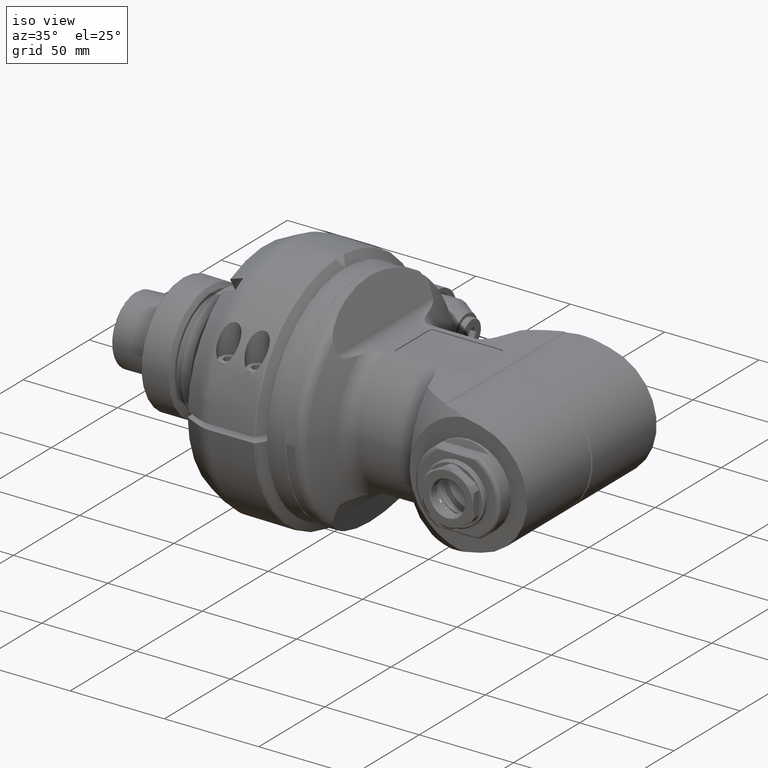
[diagram: clean part render]
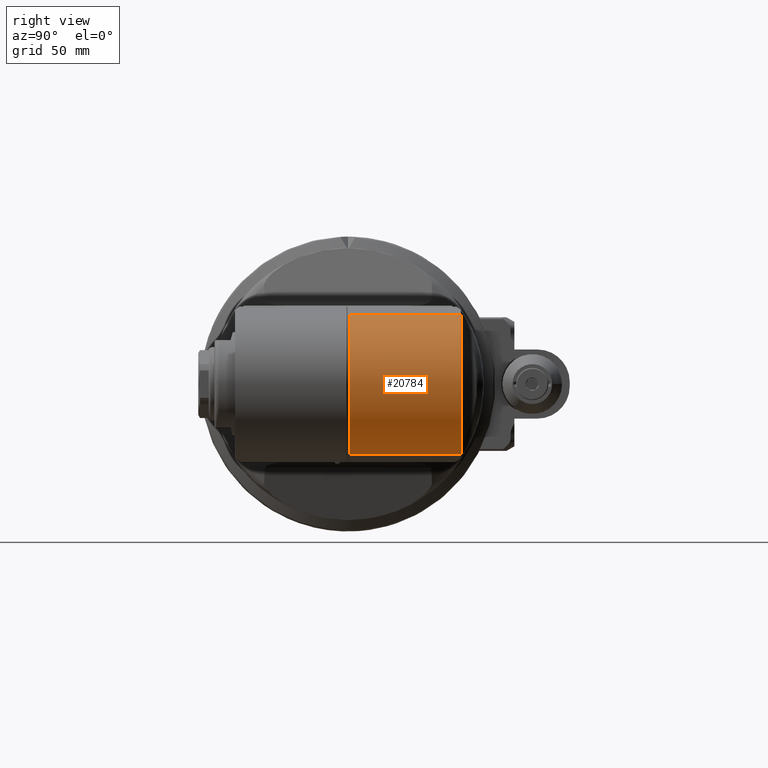
[diagram: tour spotlight — one face highlighted and labeled with its STEP entity id]
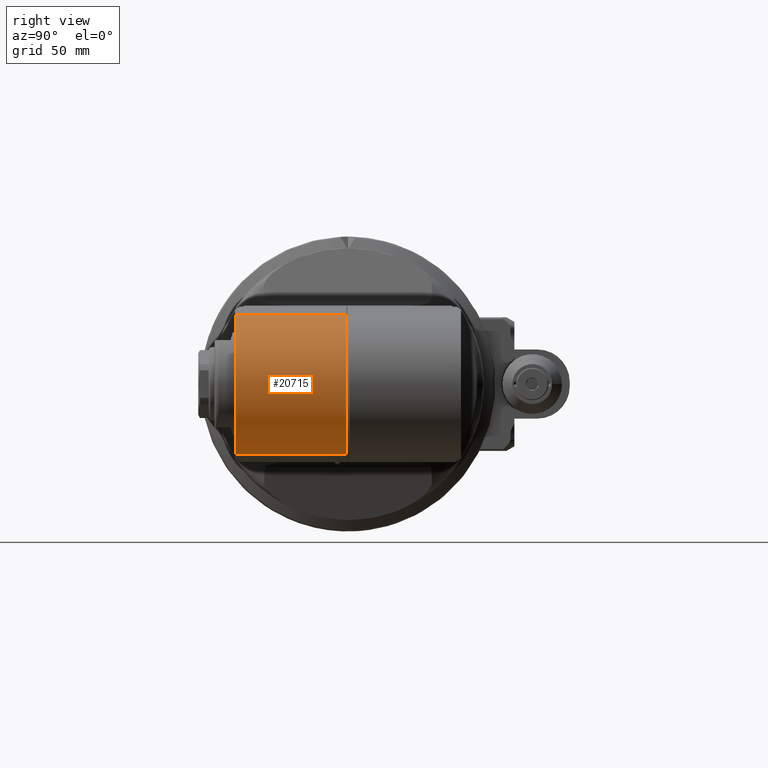
[diagram: tour spotlight — one face highlighted and labeled with its STEP entity id]
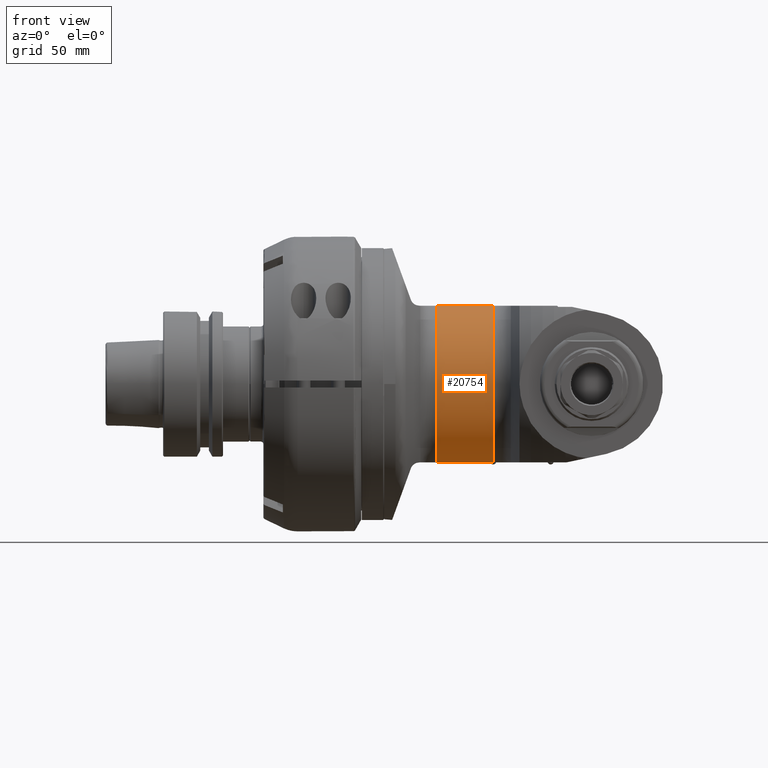
[diagram: tour spotlight — one face highlighted and labeled with its STEP entity id]
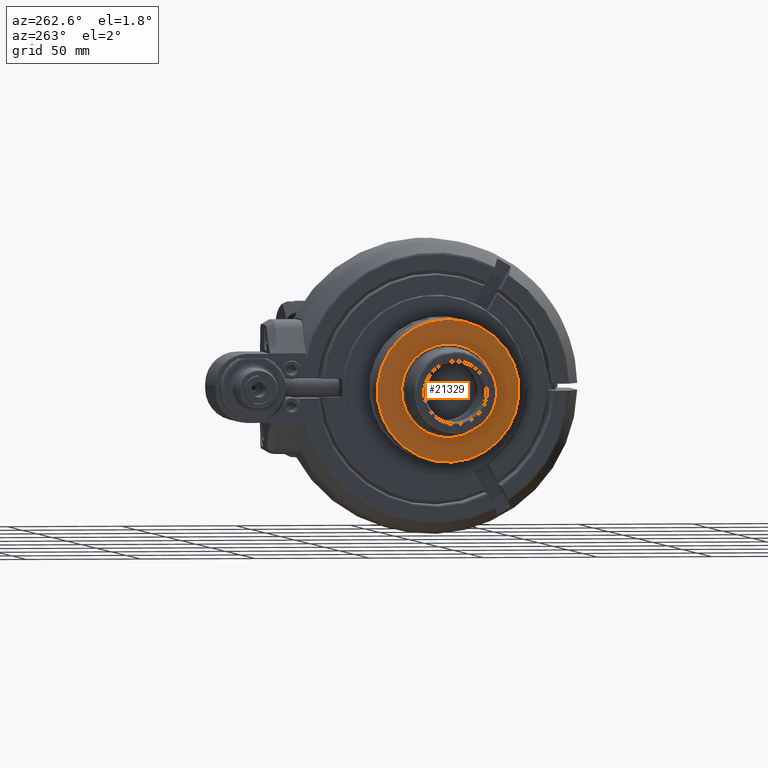
[diagram: tour spotlight — one face highlighted and labeled with its STEP entity id]
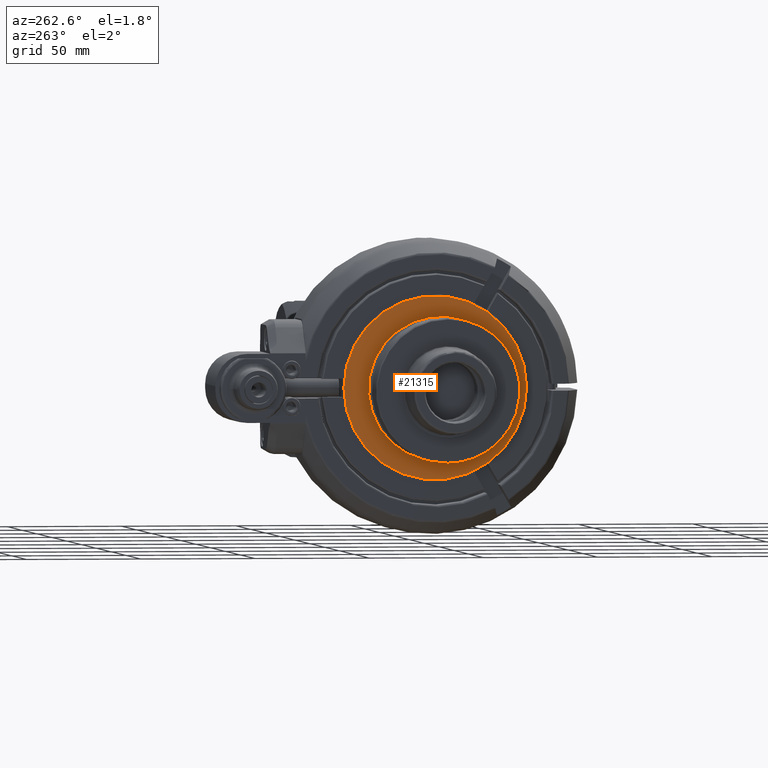
[diagram: tour spotlight — one face highlighted and labeled with its STEP entity id]
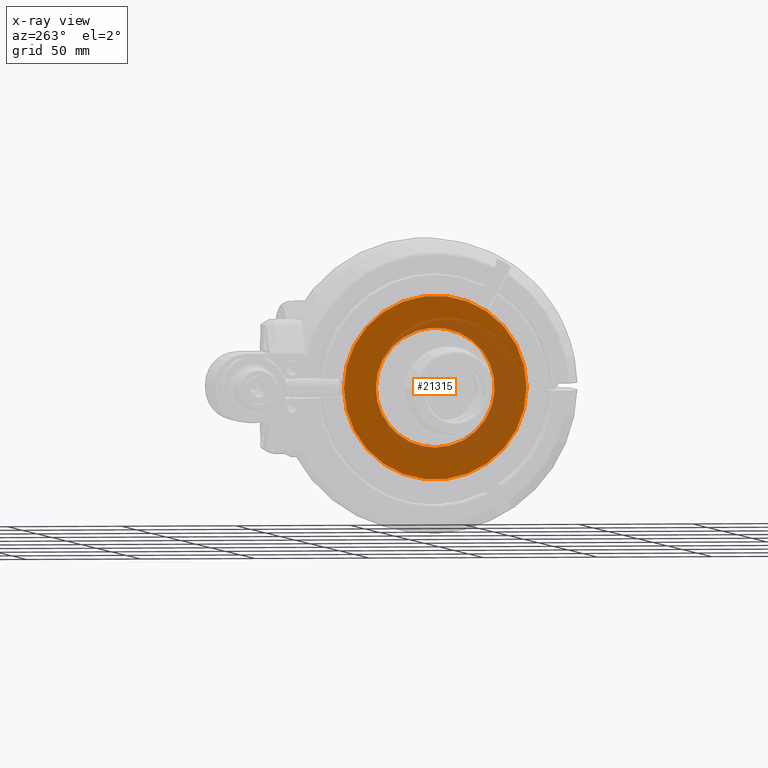
[diagram: x-ray of the same camera — body ghosted, this tour face saturated]
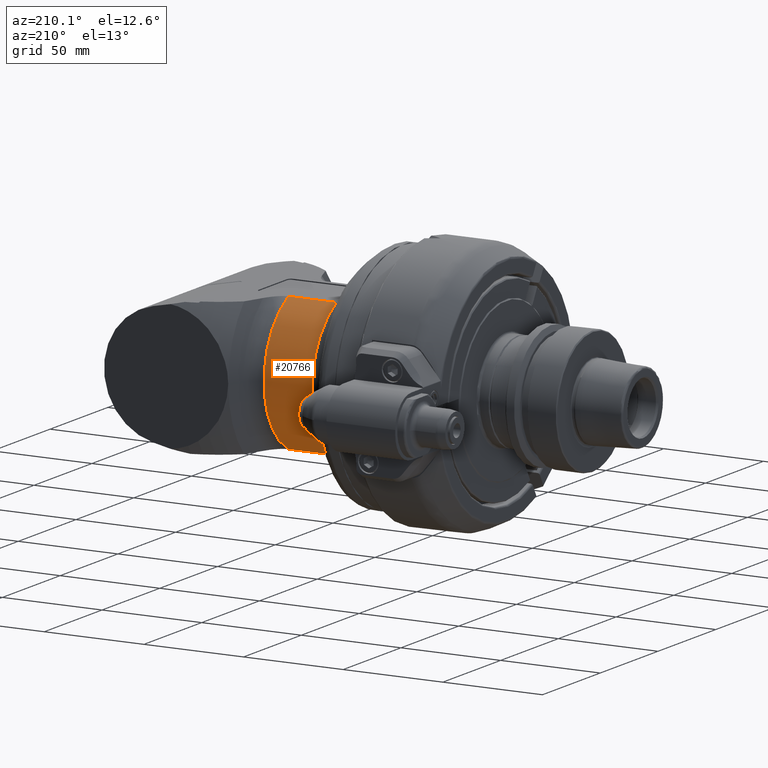
[diagram: tour spotlight — one face highlighted and labeled with its STEP entity id]
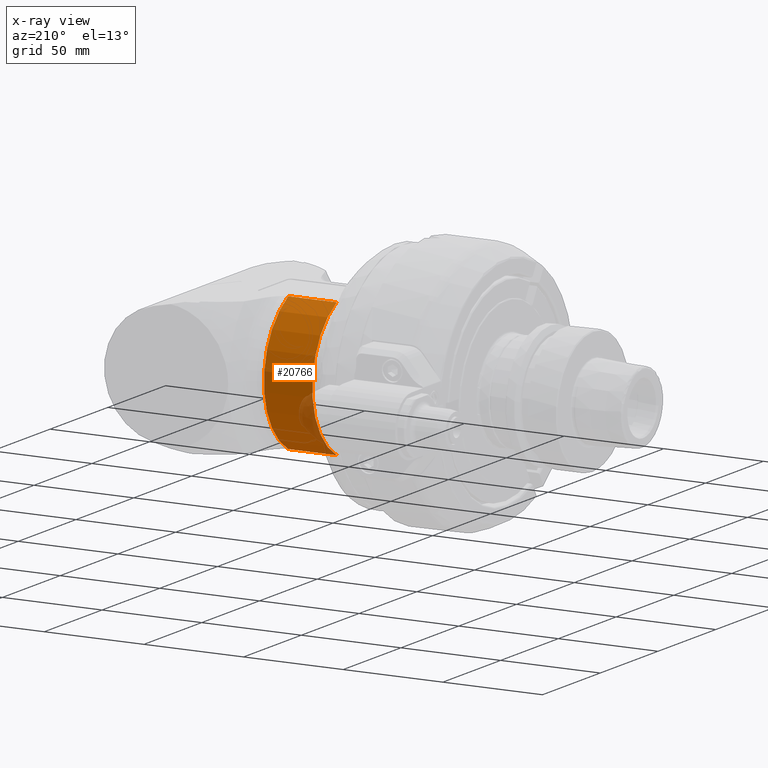
[diagram: x-ray of the same camera — body ghosted, this tour face saturated]
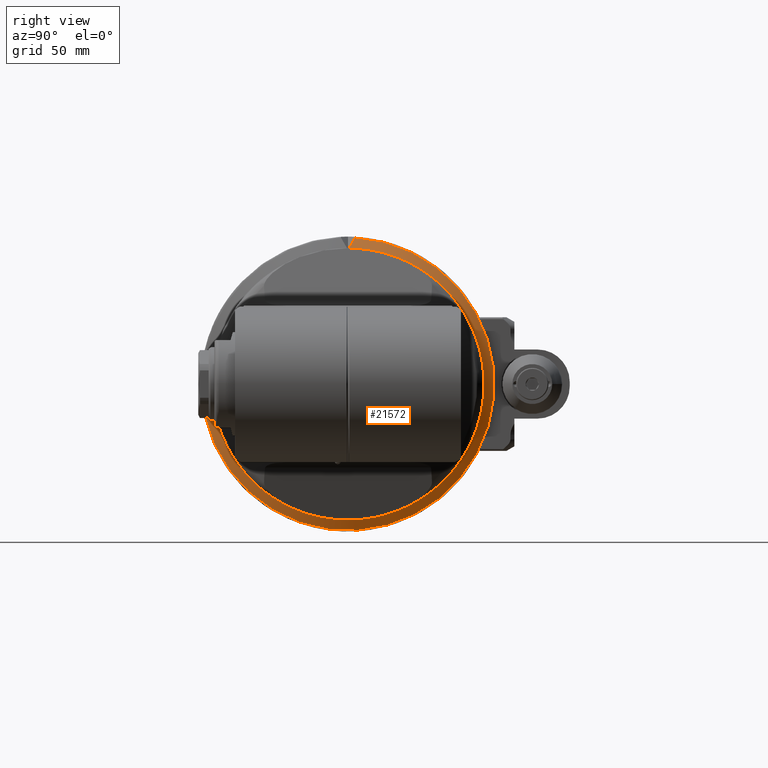
[diagram: tour spotlight — one face highlighted and labeled with its STEP entity id]
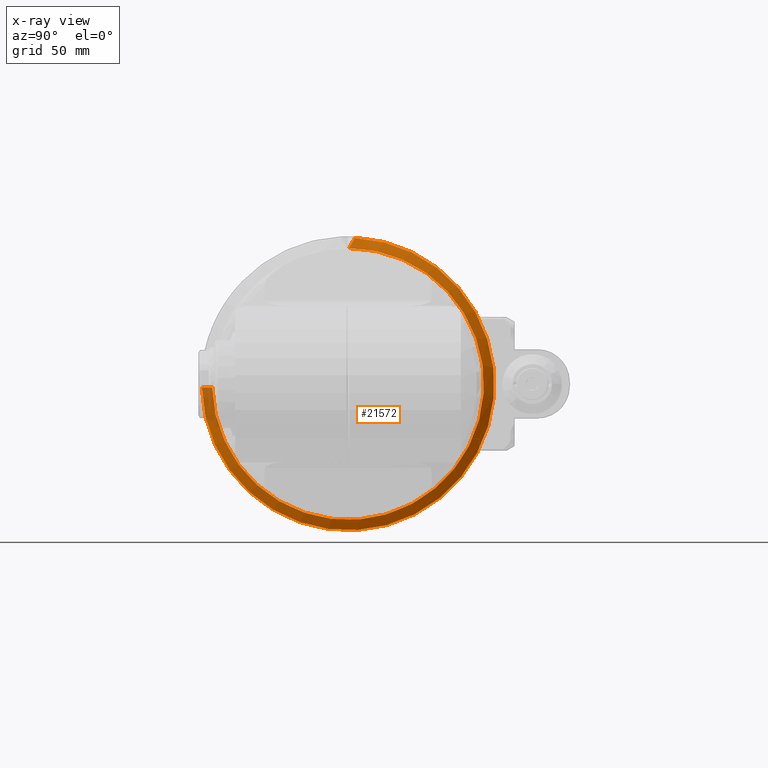
[diagram: x-ray of the same camera — body ghosted, this tour face saturated]
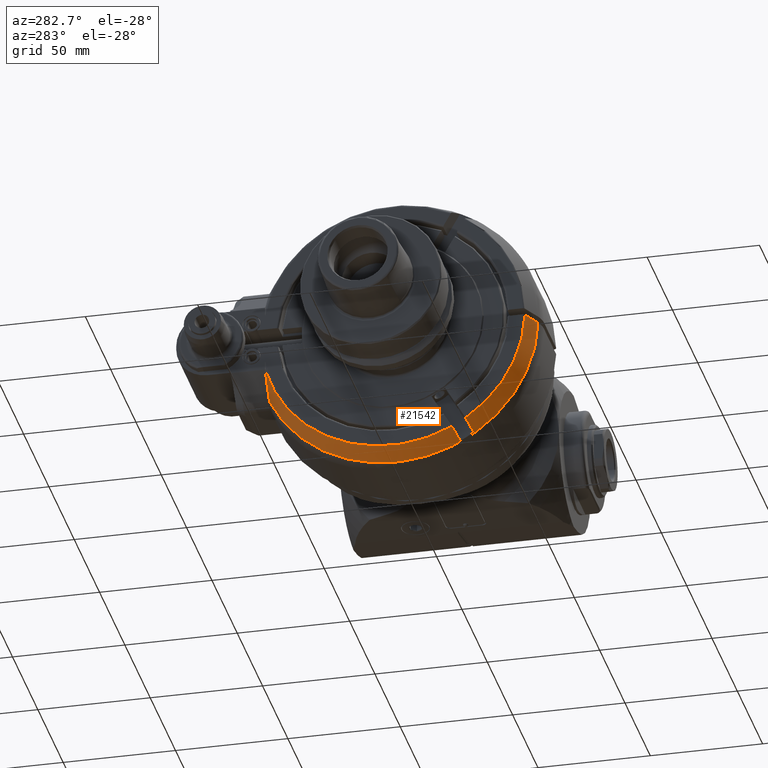
[diagram: tour spotlight — one face highlighted and labeled with its STEP entity id]
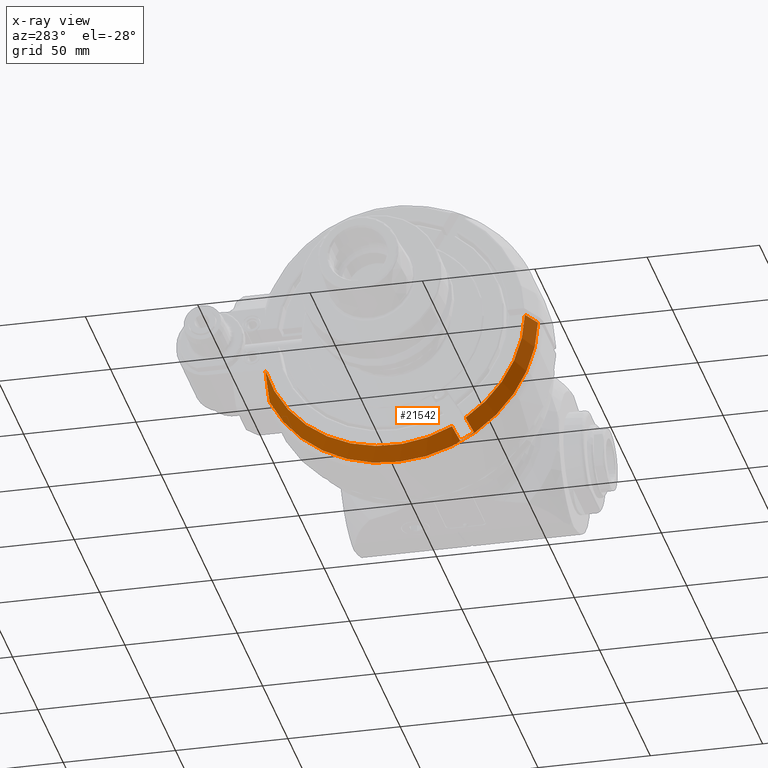
[diagram: x-ray of the same camera — body ghosted, this tour face saturated]
A machine part: a face-by-face anatomy tour. The part has 908 B-rep faces; the first image is the clean iso view, then the 8 largest visible faces are spotlighted one at a time (largest first), each with its STEP entity span.

Face 1 — right view, entity #20784. In plain terms, the highlighted cylindrical surface (partial cylindrical patch) has radius 31 mm, axis along (0, 1, 0).
Definition (entity closure, byte-faithful):
#650=CIRCLE('',#21977,31.);
#699=CIRCLE('',#22081,31.);
#2291=CYLINDRICAL_SURFACE('',#22080,31.);
#2480=FACE_OUTER_BOUND('',#3394,.T.);
#3394=EDGE_LOOP('',(#14046,#14047,#14048,#14049));
#4537=LINE('',#35312,#6032);
#4543=LINE('',#35451,#6038);
#6032=VECTOR('',#25114,1.);
#6038=VECTOR('',#25134,1.);
#7392=VERTEX_POINT('',#32868);
#7398=VERTEX_POINT('',#33017);
#7643=VERTEX_POINT('',#35310);
#7649=VERTEX_POINT('',#35449);
#10013=EDGE_CURVE('',#7398,#7392,#650,.T.);
#10300=EDGE_CURVE('',#7643,#7398,#4537,.T.);
#10310=EDGE_CURVE('',#7643,#7649,#699,.T.);
#10311=EDGE_CURVE('',#7392,#7649,#4543,.T.);
#14046=ORIENTED_EDGE('',*,*,#10310,.T.);
#14047=ORIENTED_EDGE('',*,*,#10311,.F.);
#14048=ORIENTED_EDGE('',*,*,#10013,.F.);
#14049=ORIENTED_EDGE('',*,*,#10300,.F.);
#20784=ADVANCED_FACE('',(#2480),#2291,.T.);
#21977=AXIS2_PLACEMENT_3D('',#33019,#24725,#24726);
#22080=AXIS2_PLACEMENT_3D('',#35448,#25130,#25131);
#22081=AXIS2_PLACEMENT_3D('',#35450,#25132,#25133);
#24725=DIRECTION('center_axis',(0.,1.,0.));
#24726=DIRECTION('ref_axis',(1.,0.,0.));
#25114=DIRECTION('',(-3.63387320228983E-17,1.,-1.70960292815196E-16));
#25130=DIRECTION('center_axis',(0.,1.,0.));
#25131=DIRECTION('ref_axis',(1.,0.,0.));
#25132=DIRECTION('center_axis',(0.,1.,0.));
#25133=DIRECTION('ref_axis',(1.,0.,0.));
#25134=DIRECTION('',(3.63387320228983E-17,-1.,-1.70960292815196E-16));
#32868=CARTESIAN_POINT('',(284.508359415351,49.0000000000001,-30.322575622748));
#33017=CARTESIAN_POINT('',(284.508359415351,49.0000000000001,30.322575622748));
#33019=CARTESIAN_POINT('Origin',(278.063097,49.0000000000001,-9.21763359581189E-15));
#35310=CARTESIAN_POINT('',(284.508359415351,0.665685424949276,30.322575622748));
#35312=CARTESIAN_POINT('',(284.508359415351,49.,30.322575622748));
#35448=CARTESIAN_POINT('Origin',(278.063097,49.,-9.21763359581189E-15));
#35449=CARTESIAN_POINT('',(284.50835941535,0.665685424949262,-30.322575622748));
#35450=CARTESIAN_POINT('Origin',(278.063097,0.665685424949315,-9.2176335958119E-15));
#35451=CARTESIAN_POINT('',(284.508359415351,49.,-30.322575622748));

Face 2 — right view, entity #20715. In plain terms, the highlighted cylindrical surface (partial cylindrical patch) has radius 31 mm, axis along (0, 1, 0).
Definition (entity closure, byte-faithful):
#615=CIRCLE('',#21912,31.);
#616=CIRCLE('',#21913,31.);
#2284=CYLINDRICAL_SURFACE('',#21911,31.);
#2411=FACE_OUTER_BOUND('',#3307,.T.);
#3307=EDGE_LOOP('',(#13295,#13296,#13297,#13298));
#4287=LINE('',#31269,#5782);
#4288=LINE('',#31273,#5783);
#5782=VECTOR('',#24538,1.);
#5783=VECTOR('',#24541,1.);
#7277=VERTEX_POINT('',#31267);
#7278=VERTEX_POINT('',#31268);
#7279=VERTEX_POINT('',#31270);
#7280=VERTEX_POINT('',#31272);
#9879=EDGE_CURVE('',#7277,#7278,#4287,.T.);
#9880=EDGE_CURVE('',#7279,#7277,#615,.T.);
#9881=EDGE_CURVE('',#7280,#7279,#4288,.T.);
#9882=EDGE_CURVE('',#7280,#7278,#616,.T.);
#13295=ORIENTED_EDGE('',*,*,#9879,.F.);
#13296=ORIENTED_EDGE('',*,*,#9880,.F.);
#13297=ORIENTED_EDGE('',*,*,#9881,.F.);
#13298=ORIENTED_EDGE('',*,*,#9882,.T.);
#20715=ADVANCED_FACE('',(#2411),#2284,.T.);
#21911=AXIS2_PLACEMENT_3D('',#31266,#24536,#24537);
#21912=AXIS2_PLACEMENT_3D('',#31271,#24539,#24540);
#21913=AXIS2_PLACEMENT_3D('',#31274,#24542,#24543);
#24536=DIRECTION('center_axis',(0.,1.,0.));
#24537=DIRECTION('ref_axis',(1.,0.,0.));
#24538=DIRECTION('',(3.63387320228983E-17,-1.,-1.70960292815196E-16));
#24539=DIRECTION('center_axis',(0.,1.,0.));
#24540=DIRECTION('ref_axis',(1.,0.,0.));
#24541=DIRECTION('',(-3.63387320228983E-17,1.,-1.70960292815196E-16));
#24542=DIRECTION('center_axis',(0.,1.,0.));
#24543=DIRECTION('ref_axis',(1.,0.,0.));
#31266=CARTESIAN_POINT('Origin',(278.063097,49.,-9.21763359581189E-15));
#31267=CARTESIAN_POINT('',(284.50835941535,-0.665685424949142,-30.322575622748));
#31268=CARTESIAN_POINT('',(284.508359415351,-49.,-30.322575622748));
#31269=CARTESIAN_POINT('',(284.508359415351,49.,-30.322575622748));
#31270=CARTESIAN_POINT('',(284.508359415351,-0.665685424949146,30.322575622748));
#31271=CARTESIAN_POINT('Origin',(278.063097,-0.665685424949188,-9.2176335958119E-15));
#31272=CARTESIAN_POINT('',(284.508359415351,-49.,30.322575622748));
#31273=CARTESIAN_POINT('',(284.508359415351,49.,30.322575622748));
#31274=CARTESIAN_POINT('Origin',(278.063097,-49.,-9.21763359581189E-15));

Face 3 — front view, entity #20754. In plain terms, the highlighted cylindrical surface (partial cylindrical patch) has radius 38 mm, axis along (1, 0, 0).
Definition (entity closure, byte-faithful):
#670=CIRCLE('',#22017,38.);
#671=CIRCLE('',#22019,38.);
#2287=CYLINDRICAL_SURFACE('',#22018,38.);
#2450=FACE_OUTER_BOUND('',#3351,.T.);
#3351=EDGE_LOOP('',(#13591,#13592,#13593,#13594));
#4346=LINE('',#33341,#5841);
#4407=LINE('',#34108,#5902);
#5841=VECTOR('',#24737,1.);
#5902=VECTOR('',#24872,1.);
#7405=VERTEX_POINT('',#33236);
#7406=VERTEX_POINT('',#33340);
#7487=VERTEX_POINT('',#33992);
#7488=VERTEX_POINT('',#34107);
#10023=EDGE_CURVE('',#7405,#7406,#4346,.T.);
#10118=EDGE_CURVE('',#7487,#7405,#670,.T.);
#10119=EDGE_CURVE('',#7487,#7488,#4407,.T.);
#10120=EDGE_CURVE('',#7406,#7488,#671,.T.);
#13591=ORIENTED_EDGE('',*,*,#10119,.T.);
#13592=ORIENTED_EDGE('',*,*,#10120,.F.);
#13593=ORIENTED_EDGE('',*,*,#10023,.F.);
#13594=ORIENTED_EDGE('',*,*,#10118,.F.);
#20754=ADVANCED_FACE('',(#2450),#2287,.T.);
#22017=AXIS2_PLACEMENT_3D('',#34105,#24868,#24869);
#22018=AXIS2_PLACEMENT_3D('',#34106,#24870,#24871);
#22019=AXIS2_PLACEMENT_3D('',#34109,#24873,#24874);
#24737=DIRECTION('',(1.,0.,0.));
#24868=DIRECTION('center_axis',(-1.,0.,0.));
#24869=DIRECTION('ref_axis',(0.,6.12323399573677E-17,1.));
#24870=DIRECTION('center_axis',(1.,0.,0.));
#24871=DIRECTION('ref_axis',(0.,-1.,-1.22464679914735E-16));
#24872=DIRECTION('',(1.,0.,0.));
#24873=DIRECTION('center_axis',(1.,0.,0.));
#24874=DIRECTION('ref_axis',(0.,-6.12323399573677E-17,-1.));
#33236=CARTESIAN_POINT('',(210.952119843737,-16.9705627484775,33.9999999999998));
#33340=CARTESIAN_POINT('',(235.212244038913,-16.9705627484775,33.9999999999998));
#33341=CARTESIAN_POINT('',(218.655989928391,-16.9705627484775,33.9999999999998));
#33992=CARTESIAN_POINT('',(210.952119843737,-16.9705627484767,-34.0000000000002));
#34105=CARTESIAN_POINT('Origin',(210.952119843737,-4.35081943503005E-31,
-7.105427357601E-15));
#34106=CARTESIAN_POINT('Origin',(218.155989928391,-4.35081943503005E-31,
-7.105427357601E-15));
#34107=CARTESIAN_POINT('',(235.212244038909,-16.9705627484767,-34.0000000000002));
#34108=CARTESIAN_POINT('',(218.155989928391,-16.9705627484767,-34.0000000000002));
#34109=CARTESIAN_POINT('Origin',(235.212244038913,-1.08770485875751E-31,
-1.77635683940025E-15));

Face 4 — auxiliary view, entity #21329. In plain terms, the highlighted planar face has unit normal (-1, 0, 0).
Definition (entity closure, byte-faithful):
#237=FACE_BOUND('',#3966,.T.);
#1977=CIRCLE('',#23914,31.);
#1978=CIRCLE('',#23915,31.);
#1979=CIRCLE('',#23916,20.3547974013343);
#3025=FACE_OUTER_BOUND('',#3965,.T.);
#3965=EDGE_LOOP('',(#18620,#18621));
#3966=EDGE_LOOP('',(#18622));
#9380=VERTEX_POINT('',#41315);
#9381=VERTEX_POINT('',#41316);
#9382=VERTEX_POINT('',#41319);
#12553=EDGE_CURVE('',#9380,#9381,#1977,.T.);
#12554=EDGE_CURVE('',#9381,#9380,#1978,.T.);
#12555=EDGE_CURVE('',#9382,#9382,#1979,.T.);
#18620=ORIENTED_EDGE('',*,*,#12553,.F.);
#18621=ORIENTED_EDGE('',*,*,#12554,.F.);
#18622=ORIENTED_EDGE('',*,*,#12555,.F.);
#20595=PLANE('',#23913);
#21329=ADVANCED_FACE('',(#3025,#237),#20595,.T.);
#23913=AXIS2_PLACEMENT_3D('',#41314,#29717,#29718);
#23914=AXIS2_PLACEMENT_3D('',#41317,#29719,#29720);
#23915=AXIS2_PLACEMENT_3D('',#41318,#29721,#29722);
#23916=AXIS2_PLACEMENT_3D('',#41320,#29723,#29724);
#29717=DIRECTION('center_axis',(0.,0.,1.));
#29718=DIRECTION('ref_axis',(1.,0.,0.));
#29719=DIRECTION('center_axis',(0.,0.,-1.));
#29720=DIRECTION('ref_axis',(0.707106781186548,0.707106781186547,0.));
#29721=DIRECTION('center_axis',(0.,0.,-1.));
#29722=DIRECTION('ref_axis',(0.707106781186548,0.707106781186547,0.));
#29723=DIRECTION('center_axis',(0.,0.,1.));
#29724=DIRECTION('ref_axis',(-0.707106781186548,-0.707106781186547,0.));
#41314=CARTESIAN_POINT('Origin',(-25.1945955,0.,50.995));
#41315=CARTESIAN_POINT('',(-21.920310216783,-21.920310216783,50.995));
#41316=CARTESIAN_POINT('',(31.,-3.79640507735679E-15,50.995));
#41317=CARTESIAN_POINT('Origin',(-1.25607396694702E-15,-1.25607396694702E-15,
50.995));
#41318=CARTESIAN_POINT('Origin',(-1.25607396694702E-15,-1.25607396694702E-15,
50.995));
#41319=CARTESIAN_POINT('',(14.3930152721618,14.3930152721617,50.995));
#41320=CARTESIAN_POINT('Origin',(0.,0.,50.995));

Face 5 — auxiliary view, entity #21315. An x-ray twin of the same camera follows (body ghosted, this face saturated) — the face is partly hidden behind the body. In plain terms, the highlighted planar face has unit normal (-1, 0, 0).
Definition (entity closure, byte-faithful):
#232=FACE_BOUND('',#3947,.T.);
#1911=CIRCLE('',#23812,40.);
#1912=CIRCLE('',#23813,40.);
#1939=CIRCLE('',#23859,26.);
#1940=CIRCLE('',#23860,26.);
#3011=FACE_OUTER_BOUND('',#3946,.T.);
#3946=EDGE_LOOP('',(#18544,#18545));
#3947=EDGE_LOOP('',(#18546,#18547));
#9307=VERTEX_POINT('',#40863);
#9308=VERTEX_POINT('',#40865);
#9342=VERTEX_POINT('',#41212);
#9343=VERTEX_POINT('',#41214);
#12450=EDGE_CURVE('',#9308,#9307,#1911,.T.);
#12451=EDGE_CURVE('',#9307,#9308,#1912,.T.);
#12506=EDGE_CURVE('',#9342,#9343,#1939,.T.);
#12507=EDGE_CURVE('',#9343,#9342,#1940,.T.);
#18544=ORIENTED_EDGE('',*,*,#12450,.T.);
#18545=ORIENTED_EDGE('',*,*,#12451,.T.);
#18546=ORIENTED_EDGE('',*,*,#12507,.F.);
#18547=ORIENTED_EDGE('',*,*,#12506,.F.);
#20589=PLANE('',#23862);
#21315=ADVANCED_FACE('',(#3011,#232),#20589,.T.);
#23812=AXIS2_PLACEMENT_3D('',#40866,#29483,#29484);
#23813=AXIS2_PLACEMENT_3D('',#40867,#29485,#29486);
#23859=AXIS2_PLACEMENT_3D('',#41215,#29600,#29601);
#23860=AXIS2_PLACEMENT_3D('',#41216,#29602,#29603);
#23862=AXIS2_PLACEMENT_3D('',#41219,#29607,#29608);
#29483=DIRECTION('center_axis',(0.,0.,-1.));
#29484=DIRECTION('ref_axis',(-1.,0.,0.));
#29485=DIRECTION('center_axis',(0.,0.,-1.));
#29486=DIRECTION('ref_axis',(-1.,0.,0.));
#29600=DIRECTION('center_axis',(0.,0.,-1.));
#29601=DIRECTION('ref_axis',(-1.,0.,0.));
#29602=DIRECTION('center_axis',(0.,0.,-1.));
#29603=DIRECTION('ref_axis',(-1.,0.,0.));
#29607=DIRECTION('center_axis',(0.,0.,-1.));
#29608=DIRECTION('ref_axis',(0.,-1.,0.));
#40863=CARTESIAN_POINT('',(-40.,-4.89858719658941E-15,6.));
#40865=CARTESIAN_POINT('',(40.,0.,6.));
#40866=CARTESIAN_POINT('Origin',(0.,0.,6.));
#40867=CARTESIAN_POINT('Origin',(0.,0.,6.));
#41212=CARTESIAN_POINT('',(26.,-3.18408167778312E-15,6.));
#41214=CARTESIAN_POINT('',(7.36520056694237E-15,-26.,6.));
#41215=CARTESIAN_POINT('Origin',(0.,0.,6.));
#41216=CARTESIAN_POINT('Origin',(0.,0.,6.));
#41219=CARTESIAN_POINT('Origin',(0.,0.,6.));

Face 6 — auxiliary view, entity #20766. An x-ray twin of the same camera follows (body ghosted, this face saturated) — the face is partly hidden behind the body. In plain terms, the highlighted cylindrical surface (partial cylindrical patch) has radius 38 mm, axis along (-1, 0, 0).
Definition (entity closure, byte-faithful):
#638=CIRCLE('',#21960,38.);
#683=CIRCLE('',#22046,38.);
#2289=CYLINDRICAL_SURFACE('',#22045,38.);
#2462=FACE_OUTER_BOUND('',#3365,.T.);
#3365=EDGE_LOOP('',(#13673,#13674,#13675,#13676));
#4345=LINE('',#33231,#5840);
#4449=LINE('',#34646,#5944);
#5840=VECTOR('',#24736,1.);
#5944=VECTOR('',#24970,1.);
#7379=VERTEX_POINT('',#32561);
#7380=VERTEX_POINT('',#32674);
#7403=VERTEX_POINT('',#33121);
#7542=VERTEX_POINT('',#34644);
#9988=EDGE_CURVE('',#7379,#7380,#638,.T.);
#10020=EDGE_CURVE('',#7403,#7379,#4345,.T.);
#10183=EDGE_CURVE('',#7403,#7542,#683,.T.);
#10184=EDGE_CURVE('',#7542,#7380,#4449,.T.);
#13673=ORIENTED_EDGE('',*,*,#10183,.T.);
#13674=ORIENTED_EDGE('',*,*,#10184,.T.);
#13675=ORIENTED_EDGE('',*,*,#9988,.F.);
#13676=ORIENTED_EDGE('',*,*,#10020,.F.);
#20766=ADVANCED_FACE('',(#2462),#2289,.T.);
#21960=AXIS2_PLACEMENT_3D('',#32675,#24688,#24689);
#22045=AXIS2_PLACEMENT_3D('',#34643,#24966,#24967);
#22046=AXIS2_PLACEMENT_3D('',#34645,#24968,#24969);
#24688=DIRECTION('center_axis',(-1.,0.,0.));
#24689=DIRECTION('ref_axis',(0.,6.12323399573677E-17,1.));
#24736=DIRECTION('',(-1.,0.,0.));
#24966=DIRECTION('center_axis',(-1.,0.,0.));
#24967=DIRECTION('ref_axis',(0.,1.,5.16825825323309E-15));
#24968=DIRECTION('center_axis',(-1.,0.,0.));
#24969=DIRECTION('ref_axis',(0.,6.12323399573677E-17,1.));
#24970=DIRECTION('',(-1.,0.,0.));
#32561=CARTESIAN_POINT('',(210.952119843737,16.9705627484772,34.));
#32674=CARTESIAN_POINT('',(210.952119843737,16.9705627484771,-34.));
#32675=CARTESIAN_POINT('Origin',(210.952119843737,-1.08770485875751E-31,
-1.77635683940025E-15));
#33121=CARTESIAN_POINT('',(235.212244038913,16.9705627484772,34.));
#33231=CARTESIAN_POINT('',(202.588375936022,16.9705627484772,34.));
#34643=CARTESIAN_POINT('Origin',(202.088375936022,2.17540971751503E-31,
3.5527136788005E-15));
#34644=CARTESIAN_POINT('',(235.212244038913,16.9705627484771,-34.));
#34645=CARTESIAN_POINT('Origin',(235.212244038913,2.17540971751503E-31,
3.5527136788005E-15));
#34646=CARTESIAN_POINT('',(202.088375936022,16.9705627484771,-34.));

Face 7 — right view, entity #21572. An x-ray twin of the same camera follows (body ghosted, this face saturated) — the face is partly hidden behind the body. In plain terms, the highlighted conical surface has half-angle 60 deg.
Definition (entity closure, byte-faithful):
#450=B_SPLINE_CURVE_WITH_KNOTS('',3,(#48158,#48159,#48160,#48161,#48162,
#48163,#48164,#48165,#48166,#48167,#48168,#48169,#48170),.UNSPECIFIED.,
 .F.,.F.,(4,3,3,3,4),(0.,1.29932101545524,2.59865696052371,3.89798971311573,
5.19732473155081),.UNSPECIFIED.);
#474=B_SPLINE_CURVE_WITH_KNOTS('',3,(#49224,#49225,#49226,#49227,#49228,
#49229,#49230,#49231,#49232,#49233,#49234,#49235,#49236),.UNSPECIFIED.,
 .F.,.F.,(4,3,3,3,4),(0.,1.43266969370925,2.86534099074611,4.29801819761395,
5.73070480300342),.UNSPECIFIED.);
#608=CONICAL_SURFACE('',#24462,64.,1.0471975511966);
#2240=CIRCLE('',#24400,59.);
#2267=CIRCLE('',#24463,63.5);
#3268=FACE_OUTER_BOUND('',#4244,.T.);
#4244=EDGE_LOOP('',(#19936,#19937,#19938,#19939));
#9761=VERTEX_POINT('',#48148);
#9762=VERTEX_POINT('',#48157);
#9793=VERTEX_POINT('',#48631);
#9843=VERTEX_POINT('',#49223);
#13110=EDGE_CURVE('',#9761,#9762,#450,.T.);
#13152=EDGE_CURVE('',#9762,#9793,#2240,.T.);
#13231=EDGE_CURVE('',#9793,#9843,#474,.T.);
#13232=EDGE_CURVE('',#9761,#9843,#2267,.T.);
#19936=ORIENTED_EDGE('',*,*,#13231,.F.);
#19937=ORIENTED_EDGE('',*,*,#13152,.F.);
#19938=ORIENTED_EDGE('',*,*,#13110,.F.);
#19939=ORIENTED_EDGE('',*,*,#13232,.T.);
#21572=ADVANCED_FACE('',(#3268),#608,.T.);
#24400=AXIS2_PLACEMENT_3D('',#48632,#30951,#30952);
#24462=AXIS2_PLACEMENT_3D('',#49222,#31101,#31102);
#24463=AXIS2_PLACEMENT_3D('',#49237,#31103,#31104);
#30951=DIRECTION('center_axis',(1.,0.,0.));
#30952=DIRECTION('ref_axis',(0.,-1.,0.));
#31101=DIRECTION('center_axis',(-1.,0.,0.));
#31102=DIRECTION('ref_axis',(0.,1.,0.));
#31103=DIRECTION('center_axis',(1.,0.,0.));
#31104=DIRECTION('ref_axis',(0.,-1.,0.));
#48148=CARTESIAN_POINT('',(-16.5980764421219,-63.4822809960504,-1.49999984615384));
#48157=CARTESIAN_POINT('',(-14.0000002307688,-58.9809291251125,-1.49999984615385));
#48158=CARTESIAN_POINT('Ctrl Pts',(-16.5980764421215,-63.4822809960497,
-1.49999984615385));
#48159=CARTESIAN_POINT('Ctrl Pts',(-16.3815666344965,-63.1071703382411,
-1.49999984615385));
#48160=CARTESIAN_POINT('Ctrl Pts',(-16.1650576294431,-62.7320592163114,
-1.49999984615385));
#48161=CARTESIAN_POINT('Ctrl Pts',(-15.9485494712573,-62.3569476047962,
-1.49999984615385));
#48162=CARTESIAN_POINT('Ctrl Pts',(-15.7320413130701,-61.9818359932787,
-1.49999984615385));
#48163=CARTESIAN_POINT('Ctrl Pts',(-15.5155340017355,-61.6067238921955,
-1.49999984615385));
#48164=CARTESIAN_POINT('Ctrl Pts',(-15.2990275848629,-61.2316112741751,
-1.49999984615385));
#48165=CARTESIAN_POINT('Ctrl Pts',(-15.0825211679902,-60.8564986561548,
-1.49999984615385));
#48166=CARTESIAN_POINT('Ctrl Pts',(-14.8660156455607,-60.4813855212159,
-1.49999984615385));
#48167=CARTESIAN_POINT('Ctrl Pts',(-14.6495110688119,-60.1062718398962,
-1.49999984615385));
#48168=CARTESIAN_POINT('Ctrl Pts',(-14.4330064920645,-59.7311581585791,
-1.49999984615385));
#48169=CARTESIAN_POINT('Ctrl Pts',(-14.2165028609778,-59.3560439309039,
-1.49999984615384));
#48170=CARTESIAN_POINT('Ctrl Pts',(-14.0000002307692,-58.9809291251131,
-1.49999984615384));
#48631=CARTESIAN_POINT('',(-14.0000002307688,0.431645261540888,58.9984210158898));
#48632=CARTESIAN_POINT('Origin',(-14.0000002307688,0.,0.));
#49222=CARTESIAN_POINT('Origin',(-16.8867515767169,0.,0.));
#49223=CARTESIAN_POINT('',(-16.5980764421201,2.97087011427713,63.4304653204094));
#49224=CARTESIAN_POINT('Ctrl Pts',(-14.0000002307688,0.431645261540888,
58.9984210158898));
#49225=CARTESIAN_POINT('Ctrl Pts',(-14.2143744022622,0.64467825560093,59.3681793144425));
#49226=CARTESIAN_POINT('Ctrl Pts',(-14.4293302784708,0.857321918331398,
59.7378238992729));
#49227=CARTESIAN_POINT('Ctrl Pts',(-14.6448296044466,1.06960103175969,60.1073612996975));
#49228=CARTESIAN_POINT('Ctrl Pts',(-14.8603289343609,1.28188014906771,60.476898706876));
#49229=CARTESIAN_POINT('Ctrl Pts',(-15.0763717408182,1.49379470892243,60.8463289356896));
#49230=CARTESIAN_POINT('Ctrl Pts',(-15.2929229556197,1.70536753133675,61.2156580897968));
#49231=CARTESIAN_POINT('Ctrl Pts',(-15.5094741734663,1.91694035672612,61.5849872490974));
#49232=CARTESIAN_POINT('Ctrl Pts',(-15.726533823285,2.1281714371272,61.9542153385985));
#49233=CARTESIAN_POINT('Ctrl Pts',(-15.9440696991279,2.33908180047641,62.3233480451839));
#49234=CARTESIAN_POINT('Ctrl Pts',(-16.1616055772893,2.54999216607344,62.6924807557034));
#49235=CARTESIAN_POINT('Ctrl Pts',(-16.3796177023238,2.76058180752679,63.0615180871617));
#49236=CARTESIAN_POINT('Ctrl Pts',(-16.5980764421221,2.97087011427898,63.4304653204127));
#49237=CARTESIAN_POINT('Origin',(-16.5980764421221,0.,0.));

Face 8 — auxiliary view, entity #21542. An x-ray twin of the same camera follows (body ghosted, this face saturated) — the face is partly hidden behind the body. In plain terms, the highlighted conical surface has half-angle 25 deg.
Definition (entity closure, byte-faithful):
#451=B_SPLINE_CURVE_WITH_KNOTS('',3,(#48182,#48183,#48184,#48185,#48186,
#48187,#48188,#48189,#48190,#48191,#48192,#48193,#48194,#48195,#48196,#48197),
 .UNSPECIFIED.,.F.,.F.,(4,3,3,3,3,4),(0.,2.3184605164029,4.63691341860797,
6.95535370354195,8.11454338963722,9.27375846977831),.UNSPECIFIED.);
#453=B_SPLINE_CURVE_WITH_KNOTS('',3,(#48223,#48224,#48225,#48226,#48227,
#48228,#48229,#48230,#48231,#48232,#48233,#48234,#48235),.UNSPECIFIED.,
 .F.,.F.,(4,3,3,3,4),(0.,2.18606408757751,4.37212709823059,6.5581904886857,
8.74425366329374),.UNSPECIFIED.);
#454=B_SPLINE_CURVE_WITH_KNOTS('',3,(#48237,#48238,#48239,#48240,#48241,
#48242,#48243,#48244,#48245,#48246,#48247,#48248,#48249),.UNSPECIFIED.,
 .F.,.F.,(4,3,3,3,4),(0.,2.18606317431853,4.37212722896508,6.55819084532213,
8.74425382680202),.UNSPECIFIED.);
#455=B_SPLINE_CURVE_WITH_KNOTS('',3,(#48253,#48254,#48255,#48256,#48257,
#48258,#48259,#48260,#48261,#48262,#48263,#48264,#48265,#48266,#48267,#48268,
#48269,#48270,#48271,#48272,#48273,#48274,#48275,#48276,#48277,#48278,#48279,
#48280,#48281,#48282,#48283,#48284,#48285,#48286,#48287,#48288,#48289),
 .UNSPECIFIED.,.F.,.F.,(4,3,3,3,3,3,3,3,3,3,3,3,4),(0.,0.883273283162151,
1.76633174170858,2.6492114597615,3.53195528417565,4.41461273796264,5.29723992234892,
6.17996968441117,7.0640329393277,8.83615471374727,10.6112358810475,12.3868793906453,
14.1612571024854),.UNSPECIFIED.);
#605=CONICAL_SURFACE('',#24382,58.5,0.436332312998583);
#2225=CIRCLE('',#24372,62.4636150943174);
#2230=CIRCLE('',#24383,58.7692375262292);
#2231=CIRCLE('',#24384,58.7692375262292);
#2232=CIRCLE('',#24385,62.6883090185131);
#3238=FACE_OUTER_BOUND('',#4208,.T.);
#4208=EDGE_LOOP('',(#19751,#19752,#19753,#19754,#19755,#19756,#19757,#19758));
#9752=VERTEX_POINT('',#48129);
#9758=VERTEX_POINT('',#48141);
#9766=VERTEX_POINT('',#48179);
#9767=VERTEX_POINT('',#48181);
#9773=VERTEX_POINT('',#48221);
#9774=VERTEX_POINT('',#48236);
#9775=VERTEX_POINT('',#48250);
#9776=VERTEX_POINT('',#48252);
#13107=EDGE_CURVE('',#9752,#9758,#2225,.T.);
#13117=EDGE_CURVE('',#9766,#9767,#451,.T.);
#13126=EDGE_CURVE('',#9766,#9773,#2230,.T.);
#13127=EDGE_CURVE('',#9773,#9752,#453,.T.);
#13128=EDGE_CURVE('',#9758,#9774,#454,.T.);
#13129=EDGE_CURVE('',#9774,#9775,#2231,.T.);
#13130=EDGE_CURVE('',#9776,#9775,#455,.T.);
#13131=EDGE_CURVE('',#9767,#9776,#2232,.T.);
#19751=ORIENTED_EDGE('',*,*,#13126,.T.);
#19752=ORIENTED_EDGE('',*,*,#13127,.T.);
#19753=ORIENTED_EDGE('',*,*,#13107,.T.);
#19754=ORIENTED_EDGE('',*,*,#13128,.T.);
#19755=ORIENTED_EDGE('',*,*,#13129,.T.);
#19756=ORIENTED_EDGE('',*,*,#13130,.F.);
#19757=ORIENTED_EDGE('',*,*,#13131,.F.);
#19758=ORIENTED_EDGE('',*,*,#13117,.F.);
#21542=ADVANCED_FACE('',(#3238),#605,.T.);
#24372=AXIS2_PLACEMENT_3D('',#48143,#30879,#30880);
#24382=AXIS2_PLACEMENT_3D('',#48220,#30907,#30908);
#24383=AXIS2_PLACEMENT_3D('',#48222,#30909,#30910);
#24384=AXIS2_PLACEMENT_3D('',#48251,#30911,#30912);
#24385=AXIS2_PLACEMENT_3D('',#48290,#30913,#30914);
#30879=DIRECTION('center_axis',(1.,0.,0.));
#30880=DIRECTION('ref_axis',(0.,-1.,0.));
#30907=DIRECTION('center_axis',(1.,0.,0.));
#30908=DIRECTION('ref_axis',(0.,-1.,0.));
#30909=DIRECTION('center_axis',(1.,0.,0.));
#30910=DIRECTION('ref_axis',(0.,-1.,0.));
#30911=DIRECTION('center_axis',(1.,0.,0.));
#30912=DIRECTION('ref_axis',(0.,-1.,0.));
#30913=DIRECTION('center_axis',(1.,0.,0.));
#30914=DIRECTION('ref_axis',(0.,-1.,0.));
#48129=CARTESIAN_POINT('',(-48.0000000000002,-34.2138293743205,-52.2600907978155));
#48141=CARTESIAN_POINT('',(-48.0000000000002,-28.1516515478294,-55.7600907978156));
#48143=CARTESIAN_POINT('Origin',(-48.0000000000002,0.,0.));
#48179=CARTESIAN_POINT('',(-55.9226182617451,-58.7500917435648,-1.49999984615356));
#48181=CARTESIAN_POINT('',(-47.5181423246092,-62.670360522815,-1.49999984615385));
#48182=CARTESIAN_POINT('Ctrl Pts',(-55.9226182617407,-58.7500917435529,
-1.49999984615385));
#48183=CARTESIAN_POINT('Ctrl Pts',(-55.2222478164968,-59.0767862759294,
-1.49999984615385));
#48184=CARTESIAN_POINT('Ctrl Pts',(-54.5218766915257,-59.4034793506431,
-1.49999984615385));
#48185=CARTESIAN_POINT('Ctrl Pts',(-53.8215049197482,-59.7301710382794,
-1.49999984615385));
#48186=CARTESIAN_POINT('Ctrl Pts',(-53.1211331479713,-60.0568627259154,
-1.49999984615385));
#48187=CARTESIAN_POINT('Ctrl Pts',(-52.4207607293743,-60.3835530264506,
-1.49999984615385));
#48188=CARTESIAN_POINT('Ctrl Pts',(-51.7203876947849,-60.7102420059868,
-1.49999984615385));
#48189=CARTESIAN_POINT('Ctrl Pts',(-51.0200146601954,-61.036930985523,-1.49999984615385));
#48190=CARTESIAN_POINT('Ctrl Pts',(-50.3196410096041,-61.3636186440375,
-1.49999984615385));
#48191=CARTESIAN_POINT('Ctrl Pts',(-49.6192667719025,-61.6903050435022,
-1.49999984615385));
#48192=CARTESIAN_POINT('Ctrl Pts',(-49.2690796530521,-61.8536482432343,
-1.49999984615385));
#48193=CARTESIAN_POINT('Ctrl Pts',(-48.9188923873973,-62.0169911281404,
-1.49999984615385));
#48194=CARTESIAN_POINT('Ctrl Pts',(-48.5687049783767,-62.180333705607,-1.49999984615385));
#48195=CARTESIAN_POINT('Ctrl Pts',(-48.2185175693576,-62.3436762830728,
-1.49999984615385));
#48196=CARTESIAN_POINT('Ctrl Pts',(-47.8683300169762,-62.5070185530967,
-1.49999984615385));
#48197=CARTESIAN_POINT('Ctrl Pts',(-47.5181423245662,-62.6703605228351,
-1.49999984615385));
#48220=CARTESIAN_POINT('Origin',(-56.5,0.,0.));
#48221=CARTESIAN_POINT('',(-55.9226182617407,-32.3635507917444,-49.0553142846371));
#48222=CARTESIAN_POINT('Origin',(-55.9226182617407,0.,0.));
#48223=CARTESIAN_POINT('Ctrl Pts',(-55.9226182617409,-32.3635507917443,
-49.0553142846371));
#48224=CARTESIAN_POINT('Ctrl Pts',(-55.2624125056848,-32.5177539981692,
-49.3224020728549));
#48225=CARTESIAN_POINT('Ctrl Pts',(-54.6022034462143,-32.6719536643445,
-49.5894837291808));
#48226=CARTESIAN_POINT('Ctrl Pts',(-53.941991234888,-32.8261499525164,-49.856559534633));
#48227=CARTESIAN_POINT('Ctrl Pts',(-53.2817790235604,-32.9803462406886,
-50.1236353400857));
#48228=CARTESIAN_POINT('Ctrl Pts',(-52.6215636603285,-33.1345391508069,
-50.3907052945776));
#48229=CARTESIAN_POINT('Ctrl Pts',(-51.9613452875921,-33.2887288353555,
-50.6577696622188));
#48230=CARTESIAN_POINT('Ctrl Pts',(-51.3011269148547,-33.4429185199043,
-50.9248340298603));
#48231=CARTESIAN_POINT('Ctrl Pts',(-50.6409055325693,-33.5971049788373,
-51.1918928105715));
#48232=CARTESIAN_POINT('Ctrl Pts',(-49.9806812746591,-33.7512883556002,
-51.4589462528073));
#48233=CARTESIAN_POINT('Ctrl Pts',(-49.320457016748,-33.9054717323633,-51.7259996950434));
#48234=CARTESIAN_POINT('Ctrl Pts',(-48.6602298831726,-34.0596520269141,
-51.9930477987315));
#48235=CARTESIAN_POINT('Ctrl Pts',(-48.0000000000003,-34.2138293743205,
-52.2600907978155));
#48236=CARTESIAN_POINT('',(-55.9226182617394,-26.3013729652536,-52.5553142846377));
#48237=CARTESIAN_POINT('Ctrl Pts',(-48.0000000000005,-28.1516515478298,
-55.7600907978159));
#48238=CARTESIAN_POINT('Ctrl Pts',(-48.6602298864753,-27.9974741996523,
-55.4930477973962));
#48239=CARTESIAN_POINT('Ctrl Pts',(-49.3204570245135,-27.8432939040597,
-55.2259996919034));
#48240=CARTESIAN_POINT('Ctrl Pts',(-49.9806812865267,-27.6891105263386,
-54.9589462480079));
#48241=CARTESIAN_POINT('Ctrl Pts',(-50.6409055485397,-27.5349271486175,
-54.6918928041125));
#48242=CARTESIAN_POINT('Ctrl Pts',(-51.3011269345692,-27.3807406888107,
-54.4248340218874));
#48243=CARTESIAN_POINT('Ctrl Pts',(-51.9613453092185,-27.2265510038153,
-54.1577696534723));
#48244=CARTESIAN_POINT('Ctrl Pts',(-52.6215636838692,-27.0723613188195,
-53.8907052850567));
#48245=CARTESIAN_POINT('Ctrl Pts',(-53.2817790471863,-26.9181684086821,
-53.6236353305311));
#48246=CARTESIAN_POINT('Ctrl Pts',(-53.9419912553618,-26.763972121246,-53.3565595263534));
#48247=CARTESIAN_POINT('Ctrl Pts',(-54.6022034635403,-26.6097758338093,
-53.0894837221744));
#48248=CARTESIAN_POINT('Ctrl Pts',(-55.2624125166274,-26.4555761691261,
-52.8224020684321));
#48249=CARTESIAN_POINT('Ctrl Pts',(-55.9226182617405,-26.3013729652572,
-52.5553142846412));
#48250=CARTESIAN_POINT('',(-55.9226182613679,56.7499999998322,-15.2728772486988));
#48251=CARTESIAN_POINT('Origin',(-55.9226182617407,0.,0.));
#48252=CARTESIAN_POINT('',(-47.5181423245825,56.7499999999989,-26.6319655226563));
#48253=CARTESIAN_POINT('Ctrl Pts',(-47.5181423245657,56.75,-26.6319655226687));
#48254=CARTESIAN_POINT('Ctrl Pts',(-47.7164538563916,56.75,-26.4142928787665));
#48255=CARTESIAN_POINT('Ctrl Pts',(-47.9136493940455,56.75,-26.1956585430921));
#48256=CARTESIAN_POINT('Ctrl Pts',(-48.1096771860978,56.75,-25.9760299892662));
#48257=CARTESIAN_POINT('Ctrl Pts',(-48.3057049582345,56.75,-25.7564014577536));
#48258=CARTESIAN_POINT('Ctrl Pts',(-48.500565032344,56.75,-25.5357786764541));
#48259=CARTESIAN_POINT('Ctrl Pts',(-48.6942026771666,56.75,-25.3141275477672));
#48260=CARTESIAN_POINT('Ctrl Pts',(-48.8878402973756,56.75,-25.0924764472548));
#48261=CARTESIAN_POINT('Ctrl Pts',(-49.0802555401966,56.75,-24.8697969627804));
#48262=CARTESIAN_POINT('Ctrl Pts',(-49.2713903726826,56.75,-24.6460534641228));
#48263=CARTESIAN_POINT('Ctrl Pts',(-49.4625251754216,56.75,-24.4223100002872));
#48264=CARTESIAN_POINT('Ctrl Pts',(-49.6523796242363,56.75,-24.1975024801403));
#48265=CARTESIAN_POINT('Ctrl Pts',(-49.8408920393524,56.75,-23.9715938000512));
#48266=CARTESIAN_POINT('Ctrl Pts',(-50.0294044191539,56.75,-23.7456851622822));
#48267=CARTESIAN_POINT('Ctrl Pts',(-50.2165748263268,56.75,-23.5186753162219));
#48268=CARTESIAN_POINT('Ctrl Pts',(-50.4023375665386,56.75,-23.2905257679117));
#48269=CARTESIAN_POINT('Ctrl Pts',(-50.588100265445,56.75,-23.0623762703318));
#48270=CARTESIAN_POINT('Ctrl Pts',(-50.7724553632471,56.7499999999861,-22.8330870152585));
#48271=CARTESIAN_POINT('Ctrl Pts',(-50.9553327620543,56.7499999999861,-22.6026182288127));
#48272=CARTESIAN_POINT('Ctrl Pts',(-51.1382287054312,56.7499999999861,-22.3721260718219));
#48273=CARTESIAN_POINT('Ctrl Pts',(-51.3195677345142,56.7499999999999,-22.1405562099053));
#48274=CARTESIAN_POINT('Ctrl Pts',(-51.4994999723933,56.7499999999999,-21.9075767408169));
#48275=CARTESIAN_POINT('Ctrl Pts',(-51.679449508036,56.7499999999999,-21.6745748742757));
#48276=CARTESIAN_POINT('Ctrl Pts',(-51.8580236022592,56.75,-21.4401190557539));
#48277=CARTESIAN_POINT('Ctrl Pts',(-52.03508497046,56.75,-21.2042245926102));
#48278=CARTESIAN_POINT('Ctrl Pts',(-52.3892077150057,56.75,-20.7324356554728));
#48279=CARTESIAN_POINT('Ctrl Pts',(-52.737280687106,56.75,-20.2548930326881));
#48280=CARTESIAN_POINT('Ctrl Pts',(-53.0781945156261,56.75,-19.7717053970101));
#48281=CARTESIAN_POINT('Ctrl Pts',(-53.4191084553273,56.75,-19.2885176037517));
#48282=CARTESIAN_POINT('Ctrl Pts',(-53.7528638130627,56.75,-18.799684021804));
#48283=CARTESIAN_POINT('Ctrl Pts',(-54.0783356024752,56.75,-18.3052954354271));
#48284=CARTESIAN_POINT('Ctrl Pts',(-54.4038074622345,56.75,-17.810906742194));
#48285=CARTESIAN_POINT('Ctrl Pts',(-54.7209963223426,56.75,-17.3109621165096));
#48286=CARTESIAN_POINT('Ctrl Pts',(-55.0287601680312,56.75,-16.8055366479587));
#48287=CARTESIAN_POINT('Ctrl Pts',(-55.3365240337361,56.75,-16.3001111465359));
#48288=CARTESIAN_POINT('Ctrl Pts',(-55.6348634042542,56.75,-15.7892037366837));
#48289=CARTESIAN_POINT('Ctrl Pts',(-55.9226182606224,56.75,-15.2728772494128));
#48290=CARTESIAN_POINT('Origin',(-47.5181423245661,0.,0.));